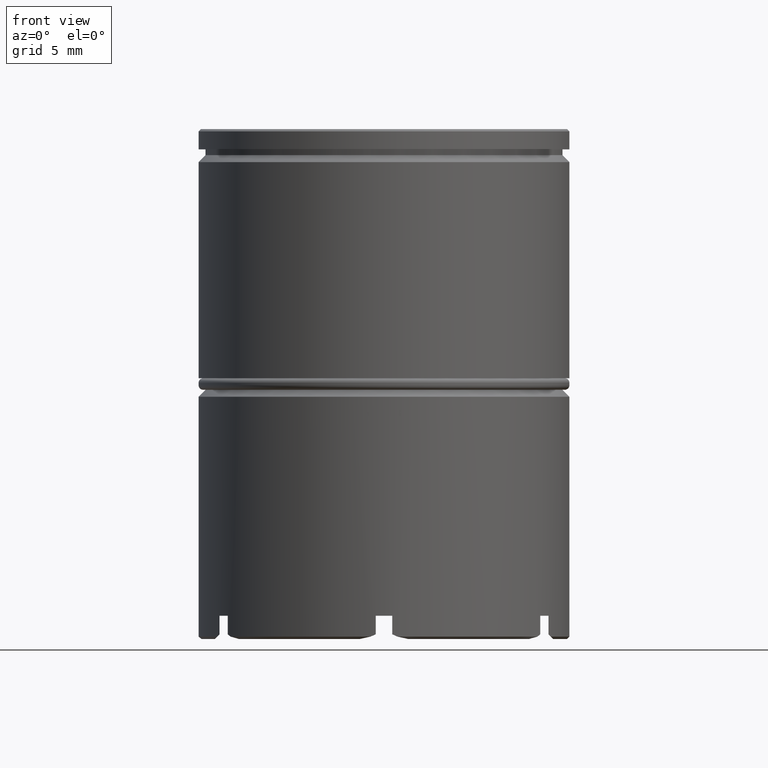
[diagram: clean part render]
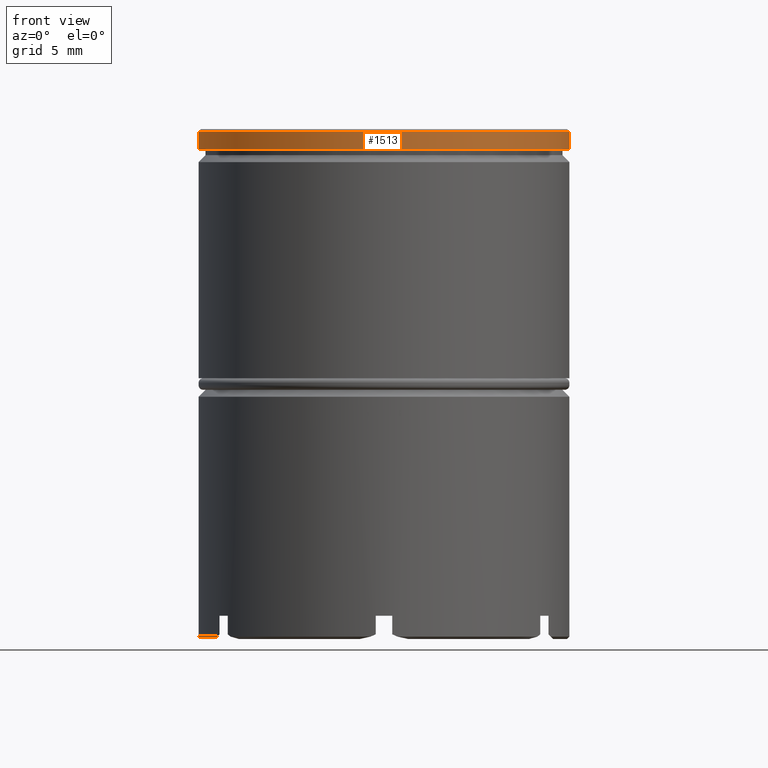
[diagram: same view with one face highlighted and labeled with its STEP entity id]
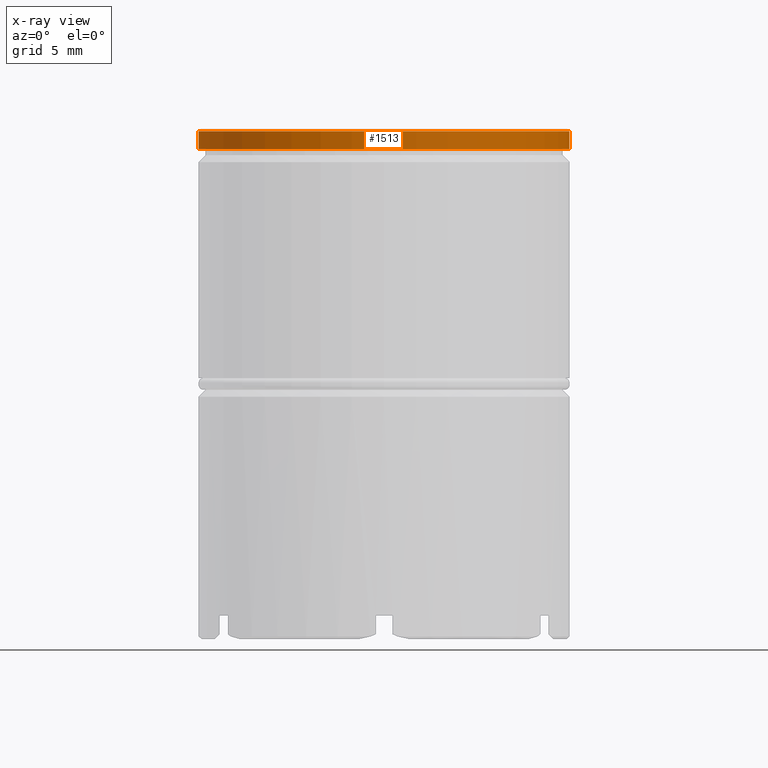
[diagram: x-ray of the same camera — body ghosted, the highlighted face saturated]
A machine part, front view. The second image highlights one B-rep face of the part: STEP entity #1513.
The next image is the same camera in x-ray: the body ghosted, the highlighted face saturated — about 0% of this face is hidden behind the body in this view.
In plain terms, the highlighted cylindrical surface (partial cylindrical patch) has radius 8 mm, axis along (-0, -0, 1).
Its self-contained STEP definition (entity closure, byte-faithful):
#50 = CARTESIAN_POINT ( 'NONE',  ( 0.000000000000000000, 0.000000000000000000, -0.09999999999999592548 ) ) ;
#66 = EDGE_CURVE ( 'NONE', #275, #1199, #894, .T. ) ;
#128 = DIRECTION ( 'NONE',  ( 1.000000000000000000, 0.000000000000000000, 0.000000000000000000 ) ) ;
#134 = EDGE_CURVE ( 'NONE', #1605, #544, #218, .T. ) ;
#161 = AXIS2_PLACEMENT_3D ( 'NONE', #1229, #228, #128 ) ;
#199 = VECTOR ( 'NONE', #1619, 1000.000000000000000 ) ;
#218 = CIRCLE ( 'NONE', #161, 8.000000000000000000 ) ;
#228 = DIRECTION ( 'NONE',  ( -0.000000000000000000, -0.000000000000000000, 1.000000000000000000 ) ) ;
#275 = VERTEX_POINT ( 'NONE', #773 ) ;
#283 = CYLINDRICAL_SURFACE ( 'NONE', #1421, 8.000000000000000000 ) ;
#361 = EDGE_CURVE ( 'NONE', #544, #275, #1565, .T. ) ;
#414 = DIRECTION ( 'NONE',  ( 1.000000000000000000, 0.000000000000000000, 0.000000000000000000 ) ) ;
#526 = VECTOR ( 'NONE', #569, 1000.000000000000000 ) ;
#544 = VERTEX_POINT ( 'NONE', #1384 ) ;
#569 = DIRECTION ( 'NONE',  ( -0.000000000000000000, -0.000000000000000000, 1.000000000000000000 ) ) ;
#773 = CARTESIAN_POINT ( 'NONE',  ( 8.000000000000000000, 0.000000000000000000, -0.09999999999999592548 ) ) ;
#784 = ORIENTED_EDGE ( 'NONE', *, *, #973, .F. ) ;
#894 = CIRCLE ( 'NONE', #1634, 8.000000000000000000 ) ;
#916 = DIRECTION ( 'NONE',  ( 0.000000000000000000, 0.000000000000000000, -1.000000000000000000 ) ) ;
#930 = DIRECTION ( 'NONE',  ( -0.000000000000000000, -0.000000000000000000, 1.000000000000000000 ) ) ;
#973 = EDGE_CURVE ( 'NONE', #1605, #1199, #1117, .T. ) ;
#1035 = FACE_OUTER_BOUND ( 'NONE', #1573, .T. ) ;
#1079 = CARTESIAN_POINT ( 'NONE',  ( -8.000000000000000000, 9.797174393178825657E-16, -0.8749999999999998890 ) ) ;
#1117 = LINE ( 'NONE', #1509, #199 ) ;
#1146 = CARTESIAN_POINT ( 'NONE',  ( 0.000000000000000000, 0.000000000000000000, 0.000000000000000000 ) ) ;
#1199 = VERTEX_POINT ( 'NONE', #1440 ) ;
#1229 = CARTESIAN_POINT ( 'NONE',  ( 0.000000000000000000, 0.000000000000000000, -0.8749999999999998890 ) ) ;
#1255 = ORIENTED_EDGE ( 'NONE', *, *, #134, .T. ) ;
#1298 = ORIENTED_EDGE ( 'NONE', *, *, #361, .T. ) ;
#1318 = CARTESIAN_POINT ( 'NONE',  ( 8.000000000000000000, 0.000000000000000000, 0.000000000000000000 ) ) ;
#1384 = CARTESIAN_POINT ( 'NONE',  ( 8.000000000000000000, 0.000000000000000000, -0.8749999999999998890 ) ) ;
#1421 = AXIS2_PLACEMENT_3D ( 'NONE', #1146, #930, #414 ) ;
#1440 = CARTESIAN_POINT ( 'NONE',  ( -8.000000000000000000, 9.797174393178825657E-16, -0.09999999999999592548 ) ) ;
#1509 = CARTESIAN_POINT ( 'NONE',  ( -8.000000000000000000, 9.797174393178825657E-16, 0.000000000000000000 ) ) ;
#1513 = ADVANCED_FACE ( 'NONE', ( #1035 ), #283, .T. ) ;
#1522 = DIRECTION ( 'NONE',  ( 1.000000000000000000, 0.000000000000000000, 0.000000000000000000 ) ) ;
#1565 = LINE ( 'NONE', #1318, #526 ) ;
#1573 = EDGE_LOOP ( 'NONE', ( #784, #1255, #1298, #1597 ) ) ;
#1597 = ORIENTED_EDGE ( 'NONE', *, *, #66, .T. ) ;
#1605 = VERTEX_POINT ( 'NONE', #1079 ) ;
#1619 = DIRECTION ( 'NONE',  ( -0.000000000000000000, -0.000000000000000000, 1.000000000000000000 ) ) ;
#1634 = AXIS2_PLACEMENT_3D ( 'NONE', #50, #916, #1522 ) ;